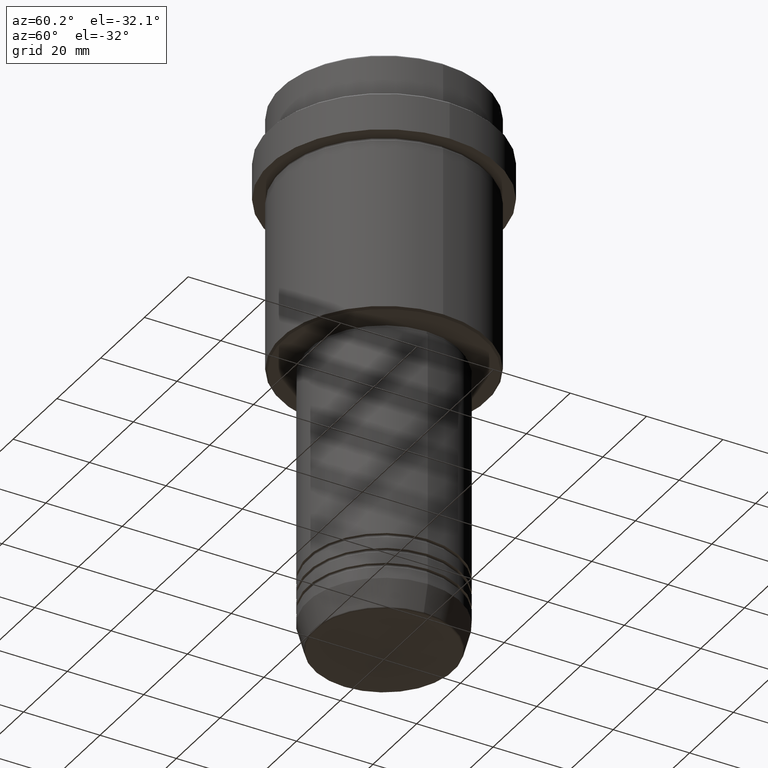
[diagram: clean part render]
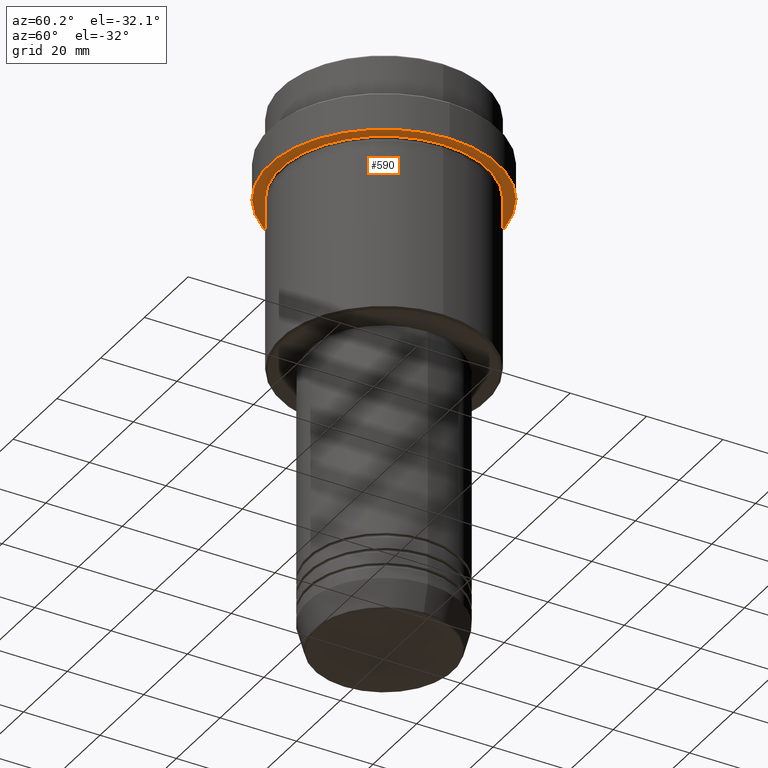
[diagram: same view with one face highlighted and labeled with its STEP entity id]
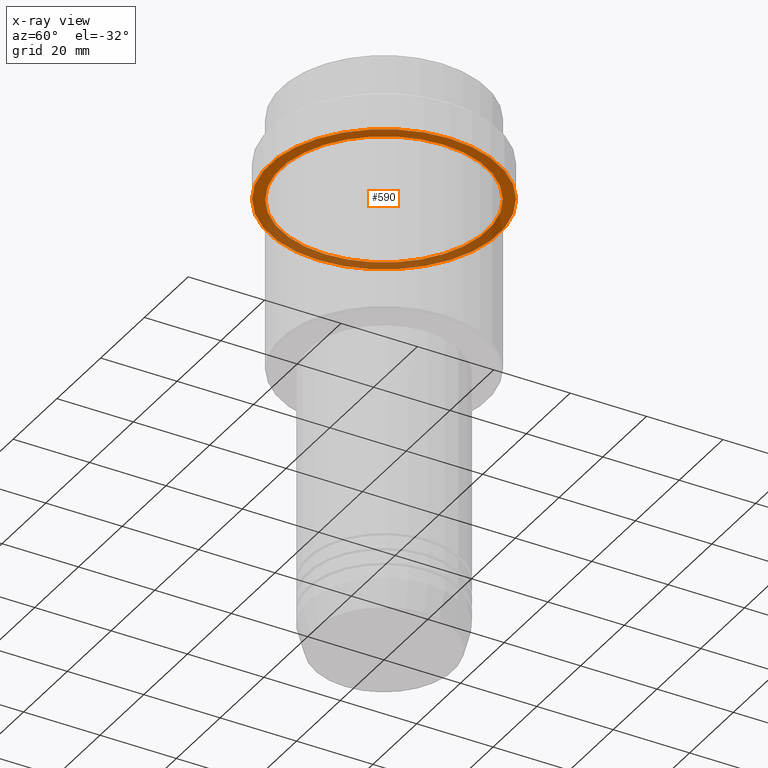
[diagram: x-ray of the same camera — body ghosted, the highlighted face saturated]
A machine part, auxiliary view. The second image highlights one B-rep face of the part: STEP entity #590.
The next image is the same camera in x-ray: the body ghosted, the highlighted face saturated — about 39% of this face is hidden behind the body in this view.
In plain terms, the highlighted planar face has unit normal (0, 0, -1).
Its self-contained STEP definition (entity closure, byte-faithful):
#1 = AXIS2_PLACEMENT_3D ( 'NONE', #1107, #1109, #238 ) ;
#117 = DIRECTION ( 'NONE',  ( 1.000000000000000000, 0.000000000000000000, 0.000000000000000000 ) ) ;
#144 = DIRECTION ( 'NONE',  ( -1.000000000000000000, 0.000000000000000000, 0.000000000000000000 ) ) ;
#180 = CIRCLE ( 'NONE', #1020, 29.99999999999999645 ) ;
#238 = DIRECTION ( 'NONE',  ( 1.000000000000000000, 0.000000000000000000, 0.000000000000000000 ) ) ;
#243 = EDGE_LOOP ( 'NONE', ( #815, #785 ) ) ;
#245 = CIRCLE ( 'NONE', #1160, 26.99999999999999289 ) ;
#340 = CARTESIAN_POINT ( 'NONE',  ( -26.99999999999999289, 0.000000000000000000, -22.00000000000000000 ) ) ;
#353 = CARTESIAN_POINT ( 'NONE',  ( 0.000000000000000000, 0.000000000000000000, -22.00000000000000000 ) ) ;
#356 = VERTEX_POINT ( 'NONE', #1403 ) ;
#358 = DIRECTION ( 'NONE',  ( -0.000000000000000000, -0.000000000000000000, 1.000000000000000000 ) ) ;
#388 = VERTEX_POINT ( 'NONE', #1006 ) ;
#418 = EDGE_CURVE ( 'NONE', #356, #713, #245, .T. ) ;
#436 = DIRECTION ( 'NONE',  ( -0.000000000000000000, -0.000000000000000000, 1.000000000000000000 ) ) ;
#460 = DIRECTION ( 'NONE',  ( 0.000000000000000000, 0.000000000000000000, -1.000000000000000000 ) ) ;
#472 = CIRCLE ( 'NONE', #1, 29.99999999999999645 ) ;
#511 = EDGE_LOOP ( 'NONE', ( #953, #1139 ) ) ;
#590 = ADVANCED_FACE ( 'NONE', ( #1146, #1067 ), #777, .T. ) ;
#650 = EDGE_CURVE ( 'NONE', #1263, #388, #180, .T. ) ;
#713 = VERTEX_POINT ( 'NONE', #340 ) ;
#748 = DIRECTION ( 'NONE',  ( -1.000000000000000000, 0.000000000000000000, 0.000000000000000000 ) ) ;
#751 = EDGE_CURVE ( 'NONE', #713, #356, #995, .T. ) ;
#759 = CARTESIAN_POINT ( 'NONE',  ( 0.000000000000000000, 29.99999999999999645, -22.00000000000000000 ) ) ;
#777 = PLANE ( 'NONE',  #1114 ) ;
#785 = ORIENTED_EDGE ( 'NONE', *, *, #650, .F. ) ;
#815 = ORIENTED_EDGE ( 'NONE', *, *, #960, .F. ) ;
#887 = DIRECTION ( 'NONE',  ( -1.000000000000000000, 0.000000000000000000, -0.000000000000000000 ) ) ;
#953 = ORIENTED_EDGE ( 'NONE', *, *, #751, .T. ) ;
#960 = EDGE_CURVE ( 'NONE', #388, #1263, #472, .T. ) ;
#995 = CIRCLE ( 'NONE', #1188, 26.99999999999999289 ) ;
#1006 = CARTESIAN_POINT ( 'NONE',  ( 29.99999999999999645, 0.000000000000000000, -22.00000000000000355 ) ) ;
#1020 = AXIS2_PLACEMENT_3D ( 'NONE', #1094, #436, #117 ) ;
#1030 = CARTESIAN_POINT ( 'NONE',  ( -29.99999999999999645, 3.673940397442058389E-15, -22.00000000000000355 ) ) ;
#1067 = FACE_OUTER_BOUND ( 'NONE', #243, .T. ) ;
#1094 = CARTESIAN_POINT ( 'NONE',  ( 0.000000000000000000, 0.000000000000000000, -22.00000000000000355 ) ) ;
#1107 = CARTESIAN_POINT ( 'NONE',  ( 0.000000000000000000, 0.000000000000000000, -22.00000000000000355 ) ) ;
#1109 = DIRECTION ( 'NONE',  ( -0.000000000000000000, -0.000000000000000000, 1.000000000000000000 ) ) ;
#1113 = CARTESIAN_POINT ( 'NONE',  ( 0.000000000000000000, 0.000000000000000000, -22.00000000000000000 ) ) ;
#1114 = AXIS2_PLACEMENT_3D ( 'NONE', #759, #460, #887 ) ;
#1139 = ORIENTED_EDGE ( 'NONE', *, *, #418, .T. ) ;
#1146 = FACE_BOUND ( 'NONE', #511, .T. ) ;
#1160 = AXIS2_PLACEMENT_3D ( 'NONE', #353, #358, #144 ) ;
#1188 = AXIS2_PLACEMENT_3D ( 'NONE', #1113, #1236, #748 ) ;
#1236 = DIRECTION ( 'NONE',  ( -0.000000000000000000, -0.000000000000000000, 1.000000000000000000 ) ) ;
#1263 = VERTEX_POINT ( 'NONE', #1030 ) ;
#1403 = CARTESIAN_POINT ( 'NONE',  ( 26.99999999999999289, 3.306546357697852944E-15, -22.00000000000000000 ) ) ;